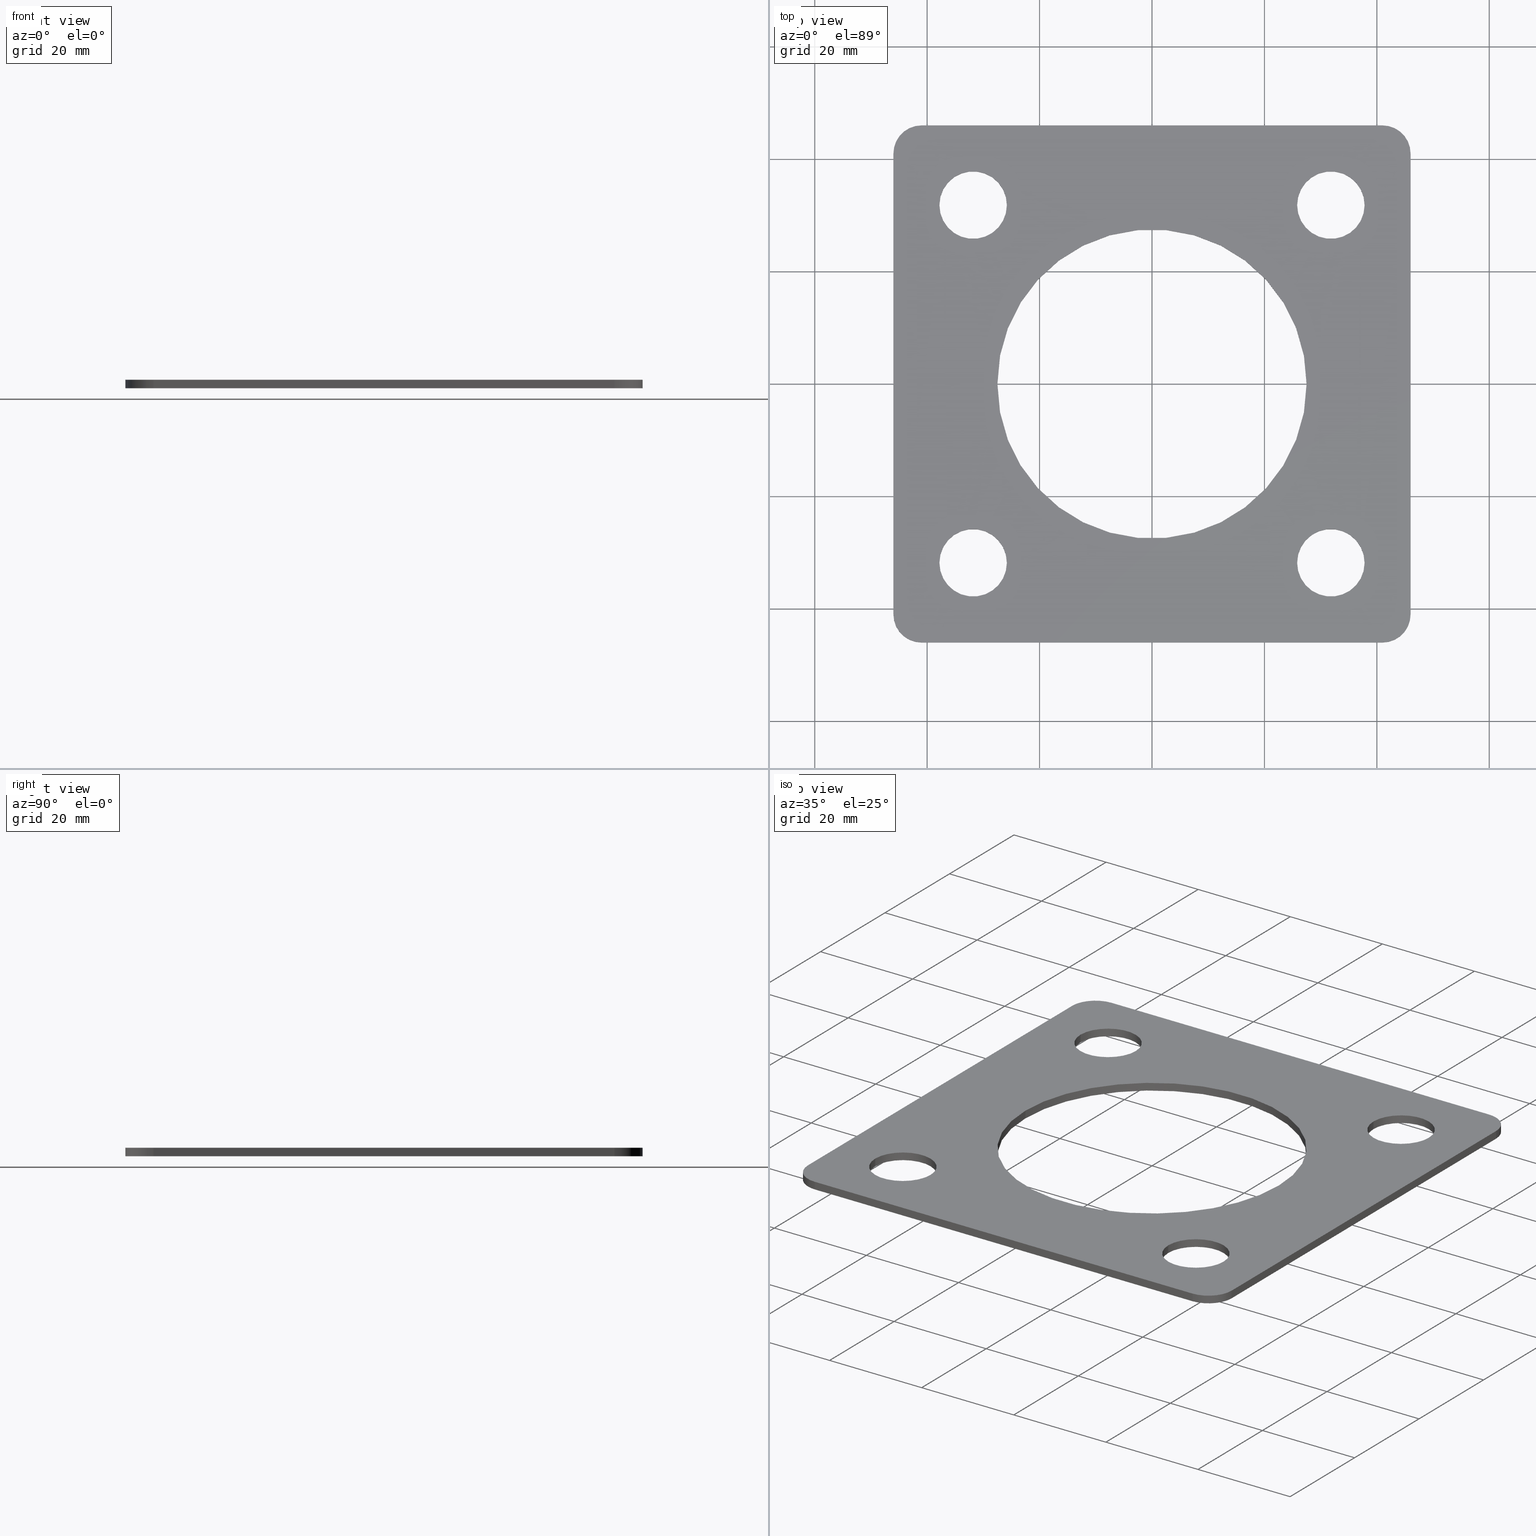
[diagram: canonical four-view strip — front | top / right | iso, engineering-drawing reading convention]
A machine part, canonical four-view strip (front | top / right | iso — engineering-drawing reading convention). The complete STEP part file that produces these views, byte-faithful:
ISO-10303-21;
HEADER;
FILE_DESCRIPTION (( 'STEP AP203' ),
    '1' );
FILE_NAME ('OEM-50-92-SQ_REV_.step',
    '2026-03-04T03:02:05',
    ( '' ),
    ( '' ),
    'SwSTEP 2.0',
    'SolidWorks 2025',
    '' );
FILE_SCHEMA (( 'CONFIG_CONTROL_DESIGN' ));
ENDSEC;

DATA;
#1 = VERTEX_POINT ( 'NONE', #164 ) ;
#2 = CARTESIAN_POINT ( 'NONE',  ( -37.81980515339457583, -31.81980515339470728, 0.000000000000000000 ) ) ;
#3 = CARTESIAN_POINT ( 'NONE',  ( 41.00000000000000711, -41.00000000000000711, -1.500000000000000000 ) ) ;
#4 = EDGE_CURVE ( 'NONE', #260, #405, #677, .T. ) ;
#5 = ORIENTED_EDGE ( 'NONE', *, *, #572, .T. ) ;
#6 = FACE_BOUND ( 'NONE', #483, .T. ) ;
#7 = VECTOR ( 'NONE', #578, 1000.000000000000000 ) ;
#8 = DIRECTION ( 'NONE',  ( 0.000000000000000000, 0.000000000000000000, 1.000000000000000000 ) ) ;
#9 = EDGE_LOOP ( 'NONE', ( #475, #691, #324, #124 ) ) ;
#10 = FACE_BOUND ( 'NONE', #683, .T. ) ;
#11 = CARTESIAN_POINT ( 'NONE',  ( -41.00000000000000000, -46.00000000000000711, 0.000000000000000000 ) ) ;
#12 = CARTESIAN_POINT ( 'NONE',  ( -41.00000000000000711, 45.99999999999999289, 0.000000000000000000 ) ) ;
#13 = EDGE_CURVE ( 'NONE', #420, #506, #266, .T. ) ;
#14 = ADVANCED_BREP_SHAPE_REPRESENTATION ( 'OEM-50-92-SQ_REV_', ( #256, #298 ), #686 ) ;
#15 = DIRECTION ( 'NONE',  ( -0.000000000000000000, 0.000000000000000000, 1.000000000000000000 ) ) ;
#16 = ORIENTED_EDGE ( 'NONE', *, *, #523, .F. ) ;
#17 = DIRECTION ( 'NONE',  ( 1.000000000000000000, 0.000000000000000000, 0.000000000000000000 ) ) ;
#18 = CIRCLE ( 'NONE', #741, 4.999999999999997335 ) ;
#19 = EDGE_CURVE ( 'NONE', #74, #254, #65, .T. ) ;
#20 = VECTOR ( 'NONE', #108, 1000.000000000000000 ) ;
#21 = ORIENTED_EDGE ( 'NONE', *, *, #533, .F. ) ;
#22 = CARTESIAN_POINT ( 'NONE',  ( -46.00000000000000711, 45.99999999999999289, 0.000000000000000000 ) ) ;
#23 = EDGE_CURVE ( 'NONE', #299, #311, #160, .T. ) ;
#24 = VERTEX_POINT ( 'NONE', #339 ) ;
#25 = ORIENTED_EDGE ( 'NONE', *, *, #23, .T. ) ;
#26 = DIRECTION ( 'NONE',  ( 0.000000000000000000, -0.000000000000000000, -1.000000000000000000 ) ) ;
#27 = CARTESIAN_POINT ( 'NONE',  ( -37.81980515339503768, 31.81980515339424187, 0.000000000000000000 ) ) ;
#28 = ORIENTED_EDGE ( 'NONE', *, *, #284, .T. ) ;
#29 = ADVANCED_FACE ( 'NONE', ( #563 ), #387, .F. ) ;
#30 = FACE_BOUND ( 'NONE', #169, .T. ) ;
#31 = CARTESIAN_POINT ( 'NONE',  ( -31.81980515339457583, -31.81980515339470728, -1.500000000000000000 ) ) ;
#32 = AXIS2_PLACEMENT_3D ( 'NONE', #419, #522, #648 ) ;
#33 = ORIENTED_EDGE ( 'NONE', *, *, #680, .F. ) ;
#34 = VECTOR ( 'NONE', #51, 1000.000000000000000 ) ;
#35 = ORIENTED_EDGE ( 'NONE', *, *, #613, .F. ) ;
#36 = PERSON_AND_ORGANIZATION ( #314, #328 ) ;
#37 = EDGE_CURVE ( 'NONE', #254, #74, #696, .T. ) ;
#38 = LINE ( 'NONE', #138, #76 ) ;
#39 = DIRECTION ( 'NONE',  ( 1.000000000000000000, 0.000000000000000000, 0.000000000000000000 ) ) ;
#40 = FACE_OUTER_BOUND ( 'NONE', #465, .T. ) ;
#41 = DIRECTION ( 'NONE',  ( -0.000000000000000000, -0.000000000000000000, 1.000000000000000000 ) ) ;
#42 = CC_DESIGN_PERSON_AND_ORGANIZATION_ASSIGNMENT ( #36, #257, ( #360 ) ) ;
#43 = DIRECTION ( 'NONE',  ( 0.000000000000000000, 0.000000000000000000, 1.000000000000000000 ) ) ;
#44 = AXIS2_PLACEMENT_3D ( 'NONE', #145, #663, #616 ) ;
#45 = EDGE_LOOP ( 'NONE', ( #78, #25, #331, #312 ) ) ;
#46 = EDGE_CURVE ( 'NONE', #385, #189, #162, .T. ) ;
#47 = LINE ( 'NONE', #105, #141 ) ;
#48 = CYLINDRICAL_SURFACE ( 'NONE', #744, 4.999999999999997335 ) ;
#49 = DIRECTION ( 'NONE',  ( -0.000000000000000000, -0.000000000000000000, 1.000000000000000000 ) ) ;
#50 = ORIENTED_EDGE ( 'NONE', *, *, #163, .T. ) ;
#51 = DIRECTION ( 'NONE',  ( 0.000000000000000000, 0.000000000000000000, 1.000000000000000000 ) ) ;
#52 = LINE ( 'NONE', #109, #532 ) ;
#53 = AXIS2_PLACEMENT_3D ( 'NONE', #69, #15, #382 ) ;
#54 = DIRECTION ( 'NONE',  ( -1.000000000000000000, 0.000000000000000000, 0.000000000000000000 ) ) ;
#55 = ORIENTED_EDGE ( 'NONE', *, *, #745, .T. ) ;
#56 = DATE_AND_TIME ( #187, #697 ) ;
#57 = DIRECTION ( 'NONE',  ( 1.000000000000000000, 0.000000000000000000, 0.000000000000000000 ) ) ;
#58 = CARTESIAN_POINT ( 'NONE',  ( 37.81980515339457583, 31.81980515339470728, -1.500000000000000000 ) ) ;
#59 = DIRECTION ( 'NONE',  ( 0.000000000000000000, -0.000000000000000000, 1.000000000000000000 ) ) ;
#60 = APPLICATION_CONTEXT ( 'configuration controlled 3d designs of mechanical parts and assemblies' ) ;
#61 = ORIENTED_EDGE ( 'NONE', *, *, #279, .T. ) ;
#62 = AXIS2_PLACEMENT_3D ( 'NONE', #418, #598, #534 ) ;
#63 = AXIS2_PLACEMENT_3D ( 'NONE', #79, #611, #97 ) ;
#64 = FACE_BOUND ( 'NONE', #566, .T. ) ;
#65 = CIRCLE ( 'NONE', #643, 5.999999999999998224 ) ;
#66 = CIRCLE ( 'NONE', #688, 5.999999999999998224 ) ;
#67 = DIRECTION ( 'NONE',  ( 0.000000000000000000, 0.000000000000000000, 1.000000000000000000 ) ) ;
#68 = EDGE_CURVE ( 'NONE', #129, #443, #733, .T. ) ;
#69 = CARTESIAN_POINT ( 'NONE',  ( 41.00000000000000711, -41.00000000000000711, 0.000000000000000000 ) ) ;
#70 = ORIENTED_EDGE ( 'NONE', *, *, #195, .T. ) ;
#71 = ORIENTED_EDGE ( 'NONE', *, *, #597, .F. ) ;
#72 = EDGE_CURVE ( 'NONE', #409, #323, #574, .T. ) ;
#73 = FACE_OUTER_BOUND ( 'NONE', #660, .T. ) ;
#74 = VERTEX_POINT ( 'NONE', #730 ) ;
#75 = DIRECTION ( 'NONE',  ( 0.000000000000000000, 0.000000000000000000, 1.000000000000000000 ) ) ;
#76 = VECTOR ( 'NONE', #376, 1000.000000000000000 ) ;
#77 = DIRECTION ( 'NONE',  ( -3.469446951953615372E-15, 1.000000000000000000, 0.000000000000000000 ) ) ;
#78 = ORIENTED_EDGE ( 'NONE', *, *, #158, .F. ) ;
#79 = CARTESIAN_POINT ( 'NONE',  ( -31.81980515339457583, -31.81980515339470728, -1.500000000000000000 ) ) ;
#80 = CARTESIAN_POINT ( 'NONE',  ( 37.81980515339481741, -31.81980515339446214, 0.000000000000000000 ) ) ;
#81 = ADVANCED_FACE ( 'NONE', ( #213 ), #48, .T. ) ;
#82 = VERTEX_POINT ( 'NONE', #329 ) ;
#83 = APPROVAL_ROLE ( '' ) ;
#84 = CARTESIAN_POINT ( 'NONE',  ( 25.81980515339481741, -31.81980515339446214, -1.500000000000000000 ) ) ;
#85 = CARTESIAN_POINT ( 'NONE',  ( -31.81980515339503768, 31.81980515339424187, -1.500000000000000000 ) ) ;
#86 = ORIENTED_EDGE ( 'NONE', *, *, #654, .F. ) ;
#87 = ORIENTED_EDGE ( 'NONE', *, *, #151, .F. ) ;
#88 = EDGE_LOOP ( 'NONE', ( #194, #98, #596, #369 ) ) ;
#89 = PERSON_AND_ORGANIZATION ( #314, #328 ) ;
#90 = LINE ( 'NONE', #371, #519 ) ;
#91 = AXIS2_PLACEMENT_3D ( 'NONE', #85, #447, #480 ) ;
#92 = CARTESIAN_POINT ( 'NONE',  ( 0.000000000000000000, -4.685600699824163028E-15, -1.500000000000000000 ) ) ;
#93 = LOCAL_TIME ( 14, 2, 5.000000000000000000, #130 ) ;
#94 = ADVANCED_FACE ( 'NONE', ( #740 ), #394, .F. ) ;
#95 = CYLINDRICAL_SURFACE ( 'NONE', #390, 5.999999999999998224 ) ;
#96 = ORIENTED_EDGE ( 'NONE', *, *, #272, .F. ) ;
#97 = DIRECTION ( 'NONE',  ( 1.000000000000000000, 0.000000000000000000, 0.000000000000000000 ) ) ;
#98 = ORIENTED_EDGE ( 'NONE', *, *, #218, .F. ) ;
#99 = DIRECTION ( 'NONE',  ( 1.000000000000000000, 0.000000000000000000, 0.000000000000000000 ) ) ;
#100 = ADVANCED_FACE ( 'NONE', ( #276 ), #155, .T. ) ;
#101 = DIRECTION ( 'NONE',  ( -3.469446951953615372E-15, 1.000000000000000000, 0.000000000000000000 ) ) ;
#102 = ADVANCED_FACE ( 'NONE', ( #270 ), #240, .F. ) ;
#103 = VECTOR ( 'NONE', #59, 1000.000000000000000 ) ;
#104 = EDGE_LOOP ( 'NONE', ( #498, #71 ) ) ;
#105 = CARTESIAN_POINT ( 'NONE',  ( 45.99999999999999289, 40.99999999999999289, -1.500000000000000000 ) ) ;
#106 = CARTESIAN_POINT ( 'NONE',  ( -31.81980515339457583, -31.81980515339470728, 0.000000000000000000 ) ) ;
#107 = ORIENTED_EDGE ( 'NONE', *, *, #68, .T. ) ;
#108 = DIRECTION ( 'NONE',  ( -0.000000000000000000, -0.000000000000000000, -1.000000000000000000 ) ) ;
#109 = CARTESIAN_POINT ( 'NONE',  ( -25.81980515339457583, -31.81980515339470728, -1.500000000000000000 ) ) ;
#110 = EDGE_LOOP ( 'NONE', ( #497, #61, #207, #595, #664, #5, #661, #429 ) ) ;
#111 =( NAMED_UNIT ( * ) SI_UNIT ( $, .STERADIAN. ) SOLID_ANGLE_UNIT ( ) );
#112 = DIRECTION ( 'NONE',  ( 0.000000000000000000, -0.000000000000000000, 1.000000000000000000 ) ) ;
#113 = AXIS2_PLACEMENT_3D ( 'NONE', #265, #372, #77 ) ;
#114 = VERTEX_POINT ( 'NONE', #525 ) ;
#115 = ORIENTED_EDGE ( 'NONE', *, *, #690, .F. ) ;
#116 = APPROVAL_DATE_TIME ( #536, #736 ) ;
#117 = EDGE_CURVE ( 'NONE', #361, #311, #440, .T. ) ;
#118 = CYLINDRICAL_SURFACE ( 'NONE', #205, 5.999999999999998224 ) ;
#119 = ORIENTED_EDGE ( 'NONE', *, *, #699, .F. ) ;
#120 = CYLINDRICAL_SURFACE ( 'NONE', #668, 5.999999999999998224 ) ;
#121 = DIRECTION ( 'NONE',  ( 0.000000000000000000, 0.000000000000000000, 1.000000000000000000 ) ) ;
#122 = CARTESIAN_POINT ( 'NONE',  ( 31.81980515339457583, 31.81980515339470728, -1.500000000000000000 ) ) ;
#123 = EDGE_CURVE ( 'NONE', #602, #368, #583, .T. ) ;
#124 = ORIENTED_EDGE ( 'NONE', *, *, #495, .T. ) ;
#125 = CIRCLE ( 'NONE', #165, 5.999999999999998224 ) ;
#126 = APPROVAL_STATUS ( 'not_yet_approved' ) ;
#127 = AXIS2_PLACEMENT_3D ( 'NONE', #228, #466, #219 ) ;
#128 = DIRECTION ( 'NONE',  ( 0.000000000000000000, 1.000000000000000000, 0.000000000000000000 ) ) ;
#129 = VERTEX_POINT ( 'NONE', #345 ) ;
#130 = COORDINATED_UNIVERSAL_TIME_OFFSET ( 10, 0, .AHEAD. ) ;
#131 = CARTESIAN_POINT ( 'NONE',  ( 45.99999999999999289, 40.99999999999999289, 0.000000000000000000 ) ) ;
#132 = DIRECTION ( 'NONE',  ( -1.000000000000000000, -0.000000000000000000, -0.000000000000000000 ) ) ;
#133 = ORIENTED_EDGE ( 'NONE', *, *, #123, .T. ) ;
#134 = ADVANCED_FACE ( 'NONE', ( #746 ), #120, .F. ) ;
#135 = CARTESIAN_POINT ( 'NONE',  ( -46.00000000000000711, 40.99999999999999289, -1.500000000000000000 ) ) ;
#136 = ORIENTED_EDGE ( 'NONE', *, *, #625, .T. ) ;
#137 = PERSON_AND_ORGANIZATION ( #314, #328 ) ;
#138 = CARTESIAN_POINT ( 'NONE',  ( 46.00000000000001421, -41.00000000000000000, -1.500000000000000000 ) ) ;
#139 = VECTOR ( 'NONE', #473, 1000.000000000000000 ) ;
#140 = FACE_OUTER_BOUND ( 'NONE', #417, .T. ) ;
#141 = VECTOR ( 'NONE', #274, 1000.000000000000000 ) ;
#142 = ORIENTED_EDGE ( 'NONE', *, *, #717, .T. ) ;
#143 = EDGE_LOOP ( 'NONE', ( #612, #190, #448, #267 ) ) ;
#144 = SECURITY_CLASSIFICATION_LEVEL ( 'unclassified' ) ;
#145 = CARTESIAN_POINT ( 'NONE',  ( 0.000000000000000000, 0.000000000000000000, 0.000000000000000000 ) ) ;
#146 = ADVANCED_FACE ( 'NONE', ( #470 ), #118, .F. ) ;
#147 = ORIENTED_EDGE ( 'NONE', *, *, #392, .F. ) ;
#148 = FACE_BOUND ( 'NONE', #211, .T. ) ;
#149 = EDGE_CURVE ( 'NONE', #552, #129, #52, .T. ) ;
#150 = VERTEX_POINT ( 'NONE', #11 ) ;
#151 = EDGE_CURVE ( 'NONE', #665, #323, #403, .T. ) ;
#152 = DATE_AND_TIME ( #544, #217 ) ;
#153 = CARTESIAN_POINT ( 'NONE',  ( -31.81980515339503768, 31.81980515339424187, 0.000000000000000000 ) ) ;
#154 = CIRCLE ( 'NONE', #91, 5.999999999999998224 ) ;
#155 = CYLINDRICAL_SURFACE ( 'NONE', #363, 4.999999999999997335 ) ;
#156 = APPROVAL_PERSON_ORGANIZATION ( #137, #662, #83 ) ;
#157 = CARTESIAN_POINT ( 'NONE',  ( 31.81980515339457583, 31.81980515339470728, -1.500000000000000000 ) ) ;
#158 = EDGE_CURVE ( 'NONE', #299, #416, #66, .T. ) ;
#159 = LINE ( 'NONE', #568, #541 ) ;
#160 = LINE ( 'NONE', #728, #310 ) ;
#161 = DIRECTION ( 'NONE',  ( 0.000000000000000000, 0.000000000000000000, 1.000000000000000000 ) ) ;
#162 = LINE ( 'NONE', #396, #604 ) ;
#163 = EDGE_CURVE ( 'NONE', #454, #379, #243, .T. ) ;
#164 = CARTESIAN_POINT ( 'NONE',  ( -27.50000000000000000, -1.317822002168941918E-15, 0.000000000000000000 ) ) ;
#165 = AXIS2_PLACEMENT_3D ( 'NONE', #305, #537, #477 ) ;
#166 = LOCAL_TIME ( 14, 2, 5.000000000000000000, #671 ) ;
#167 = EDGE_CURVE ( 'NONE', #527, #114, #520, .T. ) ;
#168 = DIRECTION ( 'NONE',  ( 1.000000000000000000, 0.000000000000000000, 0.000000000000000000 ) ) ;
#169 = EDGE_LOOP ( 'NONE', ( #479, #724 ) ) ;
#170 = DIRECTION ( 'NONE',  ( -0.000000000000000000, -0.000000000000000000, 1.000000000000000000 ) ) ;
#171 = DIRECTION ( 'NONE',  ( 0.000000000000000000, -0.000000000000000000, -1.000000000000000000 ) ) ;
#172 = ORIENTED_EDGE ( 'NONE', *, *, #68, .F. ) ;
#173 = CARTESIAN_POINT ( 'NONE',  ( -41.00000000000000711, 40.99999999999999289, -1.500000000000000000 ) ) ;
#174 = CIRCLE ( 'NONE', #666, 4.999999999999997335 ) ;
#175 = CC_DESIGN_DATE_AND_TIME_ASSIGNMENT ( #56, #291, ( #359 ) ) ;
#176 = EDGE_LOOP ( 'NONE', ( #444, #571, #713, #722 ) ) ;
#177 = DIRECTION ( 'NONE',  ( 1.000000000000000000, 0.000000000000000000, 0.000000000000000000 ) ) ;
#178 = LINE ( 'NONE', #229, #103 ) ;
#179 = ORIENTED_EDGE ( 'NONE', *, *, #441, .T. ) ;
#180 = EDGE_CURVE ( 'NONE', #150, #82, #698, .T. ) ;
#181 = FACE_OUTER_BOUND ( 'NONE', #45, .T. ) ;
#182 = EDGE_CURVE ( 'NONE', #420, #260, #178, .T. ) ;
#183 = FACE_OUTER_BOUND ( 'NONE', #249, .T. ) ;
#184 = ORIENTED_EDGE ( 'NONE', *, *, #195, .F. ) ;
#185 = LINE ( 'NONE', #58, #388 ) ;
#186 = CIRCLE ( 'NONE', #412, 4.999999999999997335 ) ;
#187 = CALENDAR_DATE ( 2026, 4, 3 ) ;
#188 = DIRECTION ( 'NONE',  ( 1.000000000000000000, 0.000000000000000000, 0.000000000000000000 ) ) ;
#189 = VERTEX_POINT ( 'NONE', #700 ) ;
#190 = ORIENTED_EDGE ( 'NONE', *, *, #366, .F. ) ;
#191 = CARTESIAN_POINT ( 'NONE',  ( -46.00000000000000711, 45.99999999999999289, -1.500000000000000000 ) ) ;
#192 = CYLINDRICAL_SURFACE ( 'NONE', #487, 5.999999999999998224 ) ;
#193 = ORIENTED_EDGE ( 'NONE', *, *, #658, .T. ) ;
#194 = ORIENTED_EDGE ( 'NONE', *, *, #745, .F. ) ;
#195 = EDGE_CURVE ( 'NONE', #506, #420, #499, .T. ) ;
#196 = PERSON_AND_ORGANIZATION ( #314, #328 ) ;
#197 = PLANE ( 'NONE',  #424 ) ;
#198 = ORIENTED_EDGE ( 'NONE', *, *, #272, .T. ) ;
#199 = ORIENTED_EDGE ( 'NONE', *, *, #167, .F. ) ;
#200 = APPROVAL_DATE_TIME ( #325, #233 ) ;
#201 = CIRCLE ( 'NONE', #53, 4.999999999999997335 ) ;
#202 = FACE_OUTER_BOUND ( 'NONE', #206, .T. ) ;
#203 = VECTOR ( 'NONE', #636, 1000.000000000000000 ) ;
#204 = LINE ( 'NONE', #554, #618 ) ;
#205 = AXIS2_PLACEMENT_3D ( 'NONE', #575, #468, #168 ) ;
#206 = EDGE_LOOP ( 'NONE', ( #35, #246, #231, #704, #488, #434, #584, #469 ) ) ;
#207 = ORIENTED_EDGE ( 'NONE', *, *, #356, .T. ) ;
#208 = APPROVAL_ROLE ( '' ) ;
#209 = PLANE ( 'NONE',  #337 ) ;
#210 = ADVANCED_FACE ( 'NONE', ( #183 ), #644, .T. ) ;
#211 = EDGE_LOOP ( 'NONE', ( #720, #70 ) ) ;
#212 = DIRECTION ( 'NONE',  ( 0.000000000000000000, -0.000000000000000000, 1.000000000000000000 ) ) ;
#213 = FACE_OUTER_BOUND ( 'NONE', #505, .T. ) ;
#214 = DIRECTION ( 'NONE',  ( -0.000000000000000000, 0.000000000000000000, 1.000000000000000000 ) ) ;
#215 = AXIS2_PLACEMENT_3D ( 'NONE', #157, #49, #679 ) ;
#216 = CARTESIAN_POINT ( 'NONE',  ( -41.00000000000000000, -41.00000000000000000, -1.500000000000000000 ) ) ;
#217 = LOCAL_TIME ( 14, 2, 5.000000000000000000, #610 ) ;
#218 = EDGE_CURVE ( 'NONE', #220, #551, #576, .T. ) ;
#219 = DIRECTION ( 'NONE',  ( 1.000000000000000000, 0.000000000000000000, 0.000000000000000000 ) ) ;
#220 = VERTEX_POINT ( 'NONE', #692 ) ;
#221 = EDGE_CURVE ( 'NONE', #512, #24, #302, .T. ) ;
#222 = DIRECTION ( 'NONE',  ( 1.000000000000000000, 0.000000000000000000, 0.000000000000000000 ) ) ;
#223 = DIRECTION ( 'NONE',  ( 0.000000000000000000, 0.000000000000000000, 1.000000000000000000 ) ) ;
#224 = FACE_OUTER_BOUND ( 'NONE', #709, .T. ) ;
#225 = DIRECTION ( 'NONE',  ( 0.000000000000000000, 0.000000000000000000, 1.000000000000000000 ) ) ;
#226 = AXIS2_PLACEMENT_3D ( 'NONE', #296, #8, #404 ) ;
#227 = ORIENTED_EDGE ( 'NONE', *, *, #180, .F. ) ;
#228 = CARTESIAN_POINT ( 'NONE',  ( 40.99999999999999289, 40.99999999999999289, -1.500000000000000000 ) ) ;
#229 = CARTESIAN_POINT ( 'NONE',  ( 37.81980515339481741, -31.81980515339446214, -1.500000000000000000 ) ) ;
#230 = EDGE_CURVE ( 'NONE', #602, #454, #400, .T. ) ;
#231 = ORIENTED_EDGE ( 'NONE', *, *, #72, .F. ) ;
#232 = DIRECTION ( 'NONE',  ( 1.040834085586084572E-14, -1.000000000000000000, 0.000000000000000000 ) ) ;
#233 = APPROVAL ( #380, 'UNSPECIFIED' ) ;
#234 = CARTESIAN_POINT ( 'NONE',  ( -25.81980515339504123, 31.81980515339424187, -1.500000000000000000 ) ) ;
#235 = DIRECTION ( 'NONE',  ( 0.000000000000000000, 0.000000000000000000, 1.000000000000000000 ) ) ;
#236 = VECTOR ( 'NONE', #415, 1000.000000000000000 ) ;
#237 = CC_DESIGN_APPROVAL ( #233, ( #360 ) ) ;
#238 = ORIENTED_EDGE ( 'NONE', *, *, #441, .F. ) ;
#239 = CARTESIAN_POINT ( 'NONE',  ( -46.00000000000000711, 45.99999999999999289, -1.500000000000000000 ) ) ;
#240 = CYLINDRICAL_SURFACE ( 'NONE', #633, 5.999999999999998224 ) ;
#241 = CC_DESIGN_DATE_AND_TIME_ASSIGNMENT ( #152, #313, ( #667 ) ) ;
#242 = CARTESIAN_POINT ( 'NONE',  ( -31.81980515339503768, 31.81980515339424187, -1.500000000000000000 ) ) ;
#243 = LINE ( 'NONE', #358, #236 ) ;
#244 = ORIENTED_EDGE ( 'NONE', *, *, #467, .T. ) ;
#245 = CARTESIAN_POINT ( 'NONE',  ( 40.99999999999998579, 45.99999999999999289, 0.000000000000000000 ) ) ;
#246 = ORIENTED_EDGE ( 'NONE', *, *, #151, .T. ) ;
#247 = AXIS2_PLACEMENT_3D ( 'NONE', #647, #472, #17 ) ;
#248 = FACE_OUTER_BOUND ( 'NONE', #476, .T. ) ;
#249 = EDGE_LOOP ( 'NONE', ( #555, #136, #743, #517 ) ) ;
#250 = ORIENTED_EDGE ( 'NONE', *, *, #658, .F. ) ;
#251 = DATE_AND_TIME ( #268, #166 ) ;
#252 = DIRECTION ( 'NONE',  ( 0.000000000000000000, 0.000000000000000000, 1.000000000000000000 ) ) ;
#253 = LINE ( 'NONE', #442, #652 ) ;
#254 = VERTEX_POINT ( 'NONE', #411 ) ;
#255 = CC_DESIGN_PERSON_AND_ORGANIZATION_ASSIGNMENT ( #399, #421, ( #410 ) ) ;
#256 = MANIFOLD_SOLID_BREP ( 'CirPattern1', #577 ) ;
#257 = PERSON_AND_ORGANIZATION_ROLE ( 'creator' ) ;
#258 = CARTESIAN_POINT ( 'NONE',  ( 41.00000000000000711, -41.00000000000000711, -1.500000000000000000 ) ) ;
#259 = DIRECTION ( 'NONE',  ( 0.000000000000000000, 0.000000000000000000, 1.000000000000000000 ) ) ;
#260 = VERTEX_POINT ( 'NONE', #80 ) ;
#261 = PERSON_AND_ORGANIZATION_ROLE ( 'design_supplier' ) ;
#262 = AXIS2_PLACEMENT_3D ( 'NONE', #489, #121, #659 ) ;
#263 = CARTESIAN_POINT ( 'NONE',  ( 27.50000000000000000, -4.685600699824163028E-15, -1.500000000000000000 ) ) ;
#264 = AXIS2_PLACEMENT_3D ( 'NONE', #393, #288, #681 ) ;
#265 = CARTESIAN_POINT ( 'NONE',  ( 31.81980515339481741, -31.81980515339446214, 0.000000000000000000 ) ) ;
#266 = CIRCLE ( 'NONE', #375, 5.999999999999998224 ) ;
#267 = ORIENTED_EDGE ( 'NONE', *, *, #117, .T. ) ;
#268 = CALENDAR_DATE ( 2026, 4, 3 ) ;
#269 = DIRECTION ( 'NONE',  ( 1.000000000000000000, 0.000000000000000000, 0.000000000000000000 ) ) ;
#270 = FACE_OUTER_BOUND ( 'NONE', #540, .T. ) ;
#271 = DIRECTION ( 'NONE',  ( 0.000000000000000000, -1.000000000000000000, 0.000000000000000000 ) ) ;
#272 = EDGE_CURVE ( 'NONE', #405, #260, #603, .T. ) ;
#273 = DIRECTION ( 'NONE',  ( -1.000000000000000000, 0.000000000000000000, 0.000000000000000000 ) ) ;
#274 = DIRECTION ( 'NONE',  ( 0.000000000000000000, 0.000000000000000000, 1.000000000000000000 ) ) ;
#275 = AXIS2_PLACEMENT_3D ( 'NONE', #242, #655, #177 ) ;
#276 = FACE_OUTER_BOUND ( 'NONE', #176, .T. ) ;
#277 = CIRCLE ( 'NONE', #264, 4.999999999999997335 ) ;
#278 = CYLINDRICAL_SURFACE ( 'NONE', #215, 5.999999999999998224 ) ;
#279 = EDGE_CURVE ( 'NONE', #82, #701, #201, .T. ) ;
#280 = ORIENTED_EDGE ( 'NONE', *, *, #717, .F. ) ;
#281 = CARTESIAN_POINT ( 'NONE',  ( -37.81980515339457583, -31.81980515339470728, -1.500000000000000000 ) ) ;
#282 = DIRECTION ( 'NONE',  ( 0.000000000000000000, 0.000000000000000000, 1.000000000000000000 ) ) ;
#283 = LINE ( 'NONE', #631, #34 ) ;
#284 = EDGE_CURVE ( 'NONE', #556, #1, #316, .T. ) ;
#285 = DIRECTION ( 'NONE',  ( 0.000000000000000000, 0.000000000000000000, 1.000000000000000000 ) ) ;
#286 = AXIS2_PLACEMENT_3D ( 'NONE', #191, #128, #364 ) ;
#287 = ORIENTED_EDGE ( 'NONE', *, *, #221, .F. ) ;
#288 = DIRECTION ( 'NONE',  ( 0.000000000000000000, -0.000000000000000000, -1.000000000000000000 ) ) ;
#289 = DIRECTION ( 'NONE',  ( 1.000000000000000000, 0.000000000000000000, 0.000000000000000000 ) ) ;
#290 = VERTEX_POINT ( 'NONE', #426 ) ;
#291 = DATE_TIME_ROLE ( 'creation_date' ) ;
#292 = DIRECTION ( 'NONE',  ( 0.000000000000000000, 0.000000000000000000, 1.000000000000000000 ) ) ;
#293 = EDGE_CURVE ( 'NONE', #189, #454, #204, .T. ) ;
#294 = CARTESIAN_POINT ( 'NONE',  ( 31.81980515339481741, -31.81980515339446214, -1.500000000000000000 ) ) ;
#295 = DIRECTION ( 'NONE',  ( -0.000000000000000000, -0.000000000000000000, 1.000000000000000000 ) ) ;
#296 = CARTESIAN_POINT ( 'NONE',  ( 31.81980515339481741, -31.81980515339446214, -1.500000000000000000 ) ) ;
#297 = AXIS2_PLACEMENT_3D ( 'NONE', #239, #651, #301 ) ;
#298 = AXIS2_PLACEMENT_3D ( 'NONE', #564, #346, #222 ) ;
#299 = VERTEX_POINT ( 'NONE', #711 ) ;
#300 = AXIS2_PLACEMENT_3D ( 'NONE', #3, #171, #57 ) ;
#301 = DIRECTION ( 'NONE',  ( 7.542275982507855914E-17, -1.000000000000000000, 0.000000000000000000 ) ) ;
#302 = LINE ( 'NONE', #482, #203 ) ;
#303 = CC_DESIGN_PERSON_AND_ORGANIZATION_ASSIGNMENT ( #89, #261, ( #360 ) ) ;
#304 = ORIENTED_EDGE ( 'NONE', *, *, #149, .T. ) ;
#305 = CARTESIAN_POINT ( 'NONE',  ( -31.81980515339457583, -31.81980515339470728, -1.500000000000000000 ) ) ;
#306 = ADVANCED_FACE ( 'NONE', ( #140 ), #192, .F. ) ;
#307 = ORIENTED_EDGE ( 'NONE', *, *, #46, .T. ) ;
#308 = CIRCLE ( 'NONE', #731, 5.999999999999998224 ) ;
#309 = CARTESIAN_POINT ( 'NONE',  ( -41.00000000000000711, 40.99999999999999289, 0.000000000000000000 ) ) ;
#310 = VECTOR ( 'NONE', #41, 1000.000000000000000 ) ;
#311 = VERTEX_POINT ( 'NONE', #27 ) ;
#312 = ORIENTED_EDGE ( 'NONE', *, *, #727, .F. ) ;
#313 = DATE_TIME_ROLE ( 'classification_date' ) ;
#314 = PERSON ( 'UNSPECIFIED', 'UNSPECIFIED', 'UNSPECIFIED', ('UNSPECIFIED'), ('UNSPECIFIED'), ('UNSPECIFIED') ) ;
#315 = DIRECTION ( 'NONE',  ( 0.000000000000000000, 0.000000000000000000, 1.000000000000000000 ) ) ;
#316 = LINE ( 'NONE', #322, #676 ) ;
#317 = ORIENTED_EDGE ( 'NONE', *, *, #158, .T. ) ;
#318 = EDGE_CURVE ( 'NONE', #527, #602, #253, .T. ) ;
#319 = ORIENTED_EDGE ( 'NONE', *, *, #481, .F. ) ;
#320 = APPROVAL_DATE_TIME ( #251, #662 ) ;
#321 = CARTESIAN_POINT ( 'NONE',  ( -25.81980515339457583, -31.81980515339470728, -1.500000000000000000 ) ) ;
#322 = CARTESIAN_POINT ( 'NONE',  ( -27.50000000000000000, -1.317822002168941918E-15, -1.500000000000000000 ) ) ;
#323 = VERTEX_POINT ( 'NONE', #433 ) ;
#324 = ORIENTED_EDGE ( 'NONE', *, *, #221, .T. ) ;
#325 = DATE_AND_TIME ( #445, #742 ) ;
#326 = VECTOR ( 'NONE', #706, 1000.000000000000000 ) ;
#327 = CARTESIAN_POINT ( 'NONE',  ( -31.81980515339457583, -31.81980515339470728, -1.500000000000000000 ) ) ;
#328 = ORGANIZATION ( 'UNSPECIFIED', 'UNSPECIFIED', '' ) ;
#329 = CARTESIAN_POINT ( 'NONE',  ( 41.00000000000000711, -46.00000000000000711, 0.000000000000000000 ) ) ;
#330 = DIRECTION ( 'NONE',  ( 1.000000000000000000, 0.000000000000000000, 0.000000000000000000 ) ) ;
#331 = ORIENTED_EDGE ( 'NONE', *, *, #597, .T. ) ;
#332 = APPLICATION_CONTEXT ( 'configuration controlled 3d designs of mechanical parts and assemblies' ) ;
#333 = APPLICATION_PROTOCOL_DEFINITION ( 'international standard', 'config_control_design', 1994, #60 ) ;
#334 = EDGE_CURVE ( 'NONE', #512, #556, #452, .T. ) ;
#335 = ORIENTED_EDGE ( 'NONE', *, *, #72, .T. ) ;
#336 =( LENGTH_UNIT ( ) NAMED_UNIT ( * ) SI_UNIT ( .MILLI., .METRE. ) );
#337 = AXIS2_PLACEMENT_3D ( 'NONE', #507, #271, #674 ) ;
#338 = PRODUCT_RELATED_PRODUCT_CATEGORY ( 'detail', '', ( #410 ) ) ;
#339 = CARTESIAN_POINT ( 'NONE',  ( 27.50000000000000000, -4.685600699824163028E-15, 0.000000000000000000 ) ) ;
#340 = CC_DESIGN_SECURITY_CLASSIFICATION ( #667, ( #360 ) ) ;
#341 = CARTESIAN_POINT ( 'NONE',  ( 46.00000000000001421, -41.00000000000000000, 0.000000000000000000 ) ) ;
#342 = ORIENTED_EDGE ( 'NONE', *, *, #37, .F. ) ;
#343 = ADVANCED_FACE ( 'NONE', ( #455 ), #278, .F. ) ;
#344 = ORIENTED_EDGE ( 'NONE', *, *, #334, .T. ) ;
#345 = CARTESIAN_POINT ( 'NONE',  ( -25.81980515339457583, -31.81980515339470728, 0.000000000000000000 ) ) ;
#346 = DIRECTION ( 'NONE',  ( 0.000000000000000000, 0.000000000000000000, 1.000000000000000000 ) ) ;
#347 = DIRECTION ( 'NONE',  ( 0.000000000000000000, -0.000000000000000000, 1.000000000000000000 ) ) ;
#348 = AXIS2_PLACEMENT_3D ( 'NONE', #389, #26, #269 ) ;
#349 = VECTOR ( 'NONE', #606, 1000.000000000000000 ) ;
#350 = ORIENTED_EDGE ( 'NONE', *, *, #366, .T. ) ;
#351 = DIRECTION ( 'NONE',  ( -0.000000000000000000, 0.000000000000000000, 1.000000000000000000 ) ) ;
#352 = CARTESIAN_POINT ( 'NONE',  ( -31.81980515339503768, 31.81980515339424187, 0.000000000000000000 ) ) ;
#353 = ORIENTED_EDGE ( 'NONE', *, *, #495, .F. ) ;
#354 = CARTESIAN_POINT ( 'NONE',  ( 25.81980515339481741, -31.81980515339446214, -1.500000000000000000 ) ) ;
#355 = CARTESIAN_POINT ( 'NONE',  ( -31.81980515339503768, 31.81980515339424187, -1.500000000000000000 ) ) ;
#356 = EDGE_CURVE ( 'NONE', #701, #383, #624, .T. ) ;
#357 = FACE_BOUND ( 'NONE', #104, .T. ) ;
#358 = CARTESIAN_POINT ( 'NONE',  ( -41.00000000000000711, 45.99999999999999289, -1.500000000000000000 ) ) ;
#359 = PRODUCT_DEFINITION ( 'UNKNOWN', '', #360, #561 ) ;
#360 = PRODUCT_DEFINITION_FORMATION_WITH_SPECIFIED_SOURCE ( 'ANY', '', #410, .NOT_KNOWN. ) ;
#361 = VERTEX_POINT ( 'NONE', #627 ) ;
#362 = APPROVAL_ROLE ( '' ) ;
#363 = AXIS2_PLACEMENT_3D ( 'NONE', #560, #621, #39 ) ;
#364 = DIRECTION ( 'NONE',  ( 0.000000000000000000, -0.000000000000000000, 1.000000000000000000 ) ) ;
#365 = EDGE_LOOP ( 'NONE', ( #342, #641 ) ) ;
#366 = EDGE_CURVE ( 'NONE', #416, #299, #154, .T. ) ;
#367 = CARTESIAN_POINT ( 'NONE',  ( -37.81980515339457583, -31.81980515339470728, -1.500000000000000000 ) ) ;
#368 = VERTEX_POINT ( 'NONE', #703 ) ;
#369 = ORIENTED_EDGE ( 'NONE', *, *, #37, .T. ) ;
#370 = COORDINATED_UNIVERSAL_TIME_OFFSET ( 10, 0, .AHEAD. ) ;
#371 = CARTESIAN_POINT ( 'NONE',  ( 45.99999999999999289, 45.99999999999999289, -1.500000000000000000 ) ) ;
#372 = DIRECTION ( 'NONE',  ( 0.000000000000000000, 0.000000000000000000, 1.000000000000000000 ) ) ;
#373 = ORIENTED_EDGE ( 'NONE', *, *, #19, .T. ) ;
#374 = AXIS2_PLACEMENT_3D ( 'NONE', #582, #292, #524 ) ;
#375 = AXIS2_PLACEMENT_3D ( 'NONE', #689, #617, #101 ) ;
#376 = DIRECTION ( 'NONE',  ( -0.000000000000000000, -0.000000000000000000, -1.000000000000000000 ) ) ;
#377 = CARTESIAN_POINT ( 'NONE',  ( 0.000000000000000000, -4.685600699824163028E-15, -1.500000000000000000 ) ) ;
#378 = EDGE_LOOP ( 'NONE', ( #486, #193 ) ) ;
#379 = VERTEX_POINT ( 'NONE', #12 ) ;
#380 = APPROVAL_STATUS ( 'not_yet_approved' ) ;
#381 = DIRECTION ( 'NONE',  ( -0.000000000000000000, -0.000000000000000000, 1.000000000000000000 ) ) ;
#382 = DIRECTION ( 'NONE',  ( 1.000000000000000000, 0.000000000000000000, 0.000000000000000000 ) ) ;
#383 = VERTEX_POINT ( 'NONE', #131 ) ;
#384 = ORIENTED_EDGE ( 'NONE', *, *, #431, .F. ) ;
#385 = VERTEX_POINT ( 'NONE', #245 ) ;
#386 = CARTESIAN_POINT ( 'NONE',  ( 0.000000000000000000, 0.000000000000000000, -1.500000000000000000 ) ) ;
#387 = CYLINDRICAL_SURFACE ( 'NONE', #463, 27.50000000000000000 ) ;
#388 = VECTOR ( 'NONE', #295, 1000.000000000000000 ) ;
#389 = CARTESIAN_POINT ( 'NONE',  ( -41.00000000000000000, -41.00000000000000000, -1.500000000000000000 ) ) ;
#390 = AXIS2_PLACEMENT_3D ( 'NONE', #327, #381, #330 ) ;
#391 = ORIENTED_EDGE ( 'NONE', *, *, #4, .T. ) ;
#392 = EDGE_CURVE ( 'NONE', #220, #254, #185, .T. ) ;
#393 = CARTESIAN_POINT ( 'NONE',  ( 40.99999999999999289, 40.99999999999999289, -1.500000000000000000 ) ) ;
#394 = CYLINDRICAL_SURFACE ( 'NONE', #504, 27.50000000000000000 ) ;
#395 = CARTESIAN_POINT ( 'NONE',  ( 46.00000000000001421, -41.00000000000000000, -1.500000000000000000 ) ) ;
#396 = CARTESIAN_POINT ( 'NONE',  ( 40.99999999999998579, 45.99999999999999289, -1.500000000000000000 ) ) ;
#397 = DIRECTION ( 'NONE',  ( -2.262682794752357144E-16, 1.000000000000000000, -0.000000000000000000 ) ) ;
#398 = ORIENTED_EDGE ( 'NONE', *, *, #13, .F. ) ;
#399 = PERSON_AND_ORGANIZATION ( #314, #328 ) ;
#400 = CIRCLE ( 'NONE', #529, 4.999999999999997335 ) ;
#401 = CC_DESIGN_APPROVAL ( #662, ( #667 ) ) ;
#402 = DIRECTION ( 'NONE',  ( 1.000000000000000000, 0.000000000000000000, 0.000000000000000000 ) ) ;
#403 = CIRCLE ( 'NONE', #300, 4.999999999999997335 ) ;
#404 = DIRECTION ( 'NONE',  ( -3.469446951953615372E-15, 1.000000000000000000, 0.000000000000000000 ) ) ;
#405 = VERTEX_POINT ( 'NONE', #425 ) ;
#406 = LINE ( 'NONE', #573, #632 ) ;
#407 = DIRECTION ( 'NONE',  ( 0.000000000000000000, -0.000000000000000000, -1.000000000000000000 ) ) ;
#408 = ADVANCED_FACE ( 'NONE', ( #73 ), #588, .T. ) ;
#409 = VERTEX_POINT ( 'NONE', #710 ) ;
#410 = PRODUCT ( 'OEM-50-92-SQ_REV_', 'OEM-50-92-SQ_REV_', '', ( #513 ) ) ;
#411 = CARTESIAN_POINT ( 'NONE',  ( 37.81980515339457583, 31.81980515339470728, 0.000000000000000000 ) ) ;
#412 = AXIS2_PLACEMENT_3D ( 'NONE', #491, #214, #496 ) ;
#413 = ADVANCED_FACE ( 'NONE', ( #248 ), #528, .T. ) ;
#414 = CYLINDRICAL_SURFACE ( 'NONE', #247, 5.999999999999998224 ) ;
#415 = DIRECTION ( 'NONE',  ( 0.000000000000000000, -0.000000000000000000, 1.000000000000000000 ) ) ;
#416 = VERTEX_POINT ( 'NONE', #234 ) ;
#417 = EDGE_LOOP ( 'NONE', ( #250, #179, #142, #599 ) ) ;
#418 = CARTESIAN_POINT ( 'NONE',  ( 0.000000000000000000, -4.685600699824163028E-15, 0.000000000000000000 ) ) ;
#419 = CARTESIAN_POINT ( 'NONE',  ( 45.99999999999999289, 45.99999999999999289, -1.500000000000000000 ) ) ;
#420 = VERTEX_POINT ( 'NONE', #422 ) ;
#421 = PERSON_AND_ORGANIZATION_ROLE ( 'design_owner' ) ;
#422 = CARTESIAN_POINT ( 'NONE',  ( 37.81980515339481741, -31.81980515339446214, -1.500000000000000000 ) ) ;
#423 = DIRECTION ( 'NONE',  ( 0.000000000000000000, 0.000000000000000000, 1.000000000000000000 ) ) ;
#424 = AXIS2_PLACEMENT_3D ( 'NONE', #386, #729, #726 ) ;
#425 = CARTESIAN_POINT ( 'NONE',  ( 25.81980515339481741, -31.81980515339446214, 0.000000000000000000 ) ) ;
#426 = CARTESIAN_POINT ( 'NONE',  ( 45.99999999999999289, 40.99999999999999289, -1.500000000000000000 ) ) ;
#427 = ORIENTED_EDGE ( 'NONE', *, *, #4, .F. ) ;
#428 = CARTESIAN_POINT ( 'NONE',  ( -41.00000000000000711, 45.99999999999999289, -1.500000000000000000 ) ) ;
#429 = ORIENTED_EDGE ( 'NONE', *, *, #458, .T. ) ;
#430 = ORIENTED_EDGE ( 'NONE', *, *, #739, .F. ) ;
#431 = EDGE_CURVE ( 'NONE', #552, #693, #125, .T. ) ;
#432 = CARTESIAN_POINT ( 'NONE',  ( -27.50000000000000000, -1.317822002168941918E-15, -1.500000000000000000 ) ) ;
#433 = CARTESIAN_POINT ( 'NONE',  ( 41.00000000000000711, -46.00000000000000711, -1.500000000000000000 ) ) ;
#434 = ORIENTED_EDGE ( 'NONE', *, *, #230, .T. ) ;
#435 = ORIENTED_EDGE ( 'NONE', *, *, #467, .F. ) ;
#436 = ORIENTED_EDGE ( 'NONE', *, *, #533, .T. ) ;
#437 = CIRCLE ( 'NONE', #348, 4.999999999999997335 ) ;
#438 = AXIS2_PLACEMENT_3D ( 'NONE', #106, #684, #402 ) ;
#439 = LINE ( 'NONE', #22, #349 ) ;
#440 = CIRCLE ( 'NONE', #570, 5.999999999999998224 ) ;
#441 = EDGE_CURVE ( 'NONE', #693, #443, #485, .T. ) ;
#442 = CARTESIAN_POINT ( 'NONE',  ( -46.00000000000000711, 40.99999999999999289, -1.500000000000000000 ) ) ;
#443 = VERTEX_POINT ( 'NONE', #2 ) ;
#444 = ORIENTED_EDGE ( 'NONE', *, *, #230, .F. ) ;
#445 = CALENDAR_DATE ( 2026, 4, 3 ) ;
#446 = DIRECTION ( 'NONE',  ( 1.000000000000000000, 0.000000000000000000, 0.000000000000000000 ) ) ;
#447 = DIRECTION ( 'NONE',  ( 0.000000000000000000, 0.000000000000000000, 1.000000000000000000 ) ) ;
#448 = ORIENTED_EDGE ( 'NONE', *, *, #727, .T. ) ;
#449 = SHAPE_DEFINITION_REPRESENTATION ( #628, #14 ) ;
#450 = DIRECTION ( 'NONE',  ( 1.040834085586084572E-14, -1.000000000000000000, 0.000000000000000000 ) ) ;
#451 = CARTESIAN_POINT ( 'NONE',  ( -46.00000000000000000, -46.00000000000000711, -1.500000000000000000 ) ) ;
#452 = CIRCLE ( 'NONE', #462, 27.50000000000000000 ) ;
#453 = CARTESIAN_POINT ( 'NONE',  ( -46.00000000000000711, 40.99999999999999289, 0.000000000000000000 ) ) ;
#454 = VERTEX_POINT ( 'NONE', #428 ) ;
#455 = FACE_OUTER_BOUND ( 'NONE', #682, .T. ) ;
#456 = CARTESIAN_POINT ( 'NONE',  ( -31.81980515339457583, -31.81980515339470728, 0.000000000000000000 ) ) ;
#457 = DIRECTION ( 'NONE',  ( 1.000000000000000000, 0.000000000000000000, 0.000000000000000000 ) ) ;
#458 = EDGE_CURVE ( 'NONE', #114, #150, #174, .T. ) ;
#459 = ADVANCED_FACE ( 'NONE', ( #181 ), #645, .F. ) ;
#460 = CARTESIAN_POINT ( 'NONE',  ( 31.81980515339457583, 31.81980515339470728, 0.000000000000000000 ) ) ;
#461 = CARTESIAN_POINT ( 'NONE',  ( -25.81980515339504123, 31.81980515339424187, -1.500000000000000000 ) ) ;
#462 = AXIS2_PLACEMENT_3D ( 'NONE', #377, #259, #607 ) ;
#463 = AXIS2_PLACEMENT_3D ( 'NONE', #92, #223, #457 ) ;
#464 = DIRECTION ( 'NONE',  ( 1.000000000000000000, 0.000000000000000000, 0.000000000000000000 ) ) ;
#465 = EDGE_LOOP ( 'NONE', ( #335, #673, #227, #614 ) ) ;
#466 = DIRECTION ( 'NONE',  ( 0.000000000000000000, -0.000000000000000000, 1.000000000000000000 ) ) ;
#467 = EDGE_CURVE ( 'NONE', #1, #24, #707, .T. ) ;
#468 = DIRECTION ( 'NONE',  ( -0.000000000000000000, -0.000000000000000000, 1.000000000000000000 ) ) ;
#469 = ORIENTED_EDGE ( 'NONE', *, *, #716, .T. ) ;
#470 = FACE_OUTER_BOUND ( 'NONE', #143, .T. ) ;
#471 = ADVANCED_FACE ( 'NONE', ( #539 ), #414, .F. ) ;
#472 = DIRECTION ( 'NONE',  ( -0.000000000000000000, -0.000000000000000000, 1.000000000000000000 ) ) ;
#473 = DIRECTION ( 'NONE',  ( 7.542275982507857147E-17, -1.000000000000000000, 0.000000000000000000 ) ) ;
#474 = CIRCLE ( 'NONE', #557, 27.50000000000000000 ) ;
#475 = ORIENTED_EDGE ( 'NONE', *, *, #284, .F. ) ;
#476 = EDGE_LOOP ( 'NONE', ( #493, #50, #86, #307 ) ) ;
#477 = DIRECTION ( 'NONE',  ( 1.000000000000000000, 0.000000000000000000, 0.000000000000000000 ) ) ;
#478 = DIRECTION ( 'NONE',  ( 1.000000000000000000, 0.000000000000000000, 0.000000000000000000 ) ) ;
#479 = ORIENTED_EDGE ( 'NONE', *, *, #218, .T. ) ;
#480 = DIRECTION ( 'NONE',  ( 1.040834085586084572E-14, -1.000000000000000000, 0.000000000000000000 ) ) ;
#481 = EDGE_CURVE ( 'NONE', #551, #220, #567, .T. ) ;
#482 = CARTESIAN_POINT ( 'NONE',  ( 27.50000000000000000, -4.685600699824163028E-15, -1.500000000000000000 ) ) ;
#483 = EDGE_LOOP ( 'NONE', ( #172, #280 ) ) ;
#484 = PERSON_AND_ORGANIZATION ( #314, #328 ) ;
#485 = LINE ( 'NONE', #367, #326 ) ;
#486 = ORIENTED_EDGE ( 'NONE', *, *, #431, .T. ) ;
#487 = AXIS2_PLACEMENT_3D ( 'NONE', #31, #550, #546 ) ;
#488 = ORIENTED_EDGE ( 'NONE', *, *, #123, .F. ) ;
#489 = CARTESIAN_POINT ( 'NONE',  ( 31.81980515339457583, 31.81980515339470728, -1.500000000000000000 ) ) ;
#490 = EDGE_LOOP ( 'NONE', ( #87, #639, #656, #115 ) ) ;
#491 = CARTESIAN_POINT ( 'NONE',  ( 40.99999999999999289, 40.99999999999999289, 0.000000000000000000 ) ) ;
#492 = DIRECTION ( 'NONE',  ( -0.000000000000000000, -0.000000000000000000, -1.000000000000000000 ) ) ;
#493 = ORIENTED_EDGE ( 'NONE', *, *, #293, .T. ) ;
#494 = EDGE_LOOP ( 'NONE', ( #579, #28, #244, #287 ) ) ;
#495 = EDGE_CURVE ( 'NONE', #24, #1, #589, .T. ) ;
#496 = DIRECTION ( 'NONE',  ( 1.000000000000000000, 0.000000000000000000, 0.000000000000000000 ) ) ;
#497 = ORIENTED_EDGE ( 'NONE', *, *, #180, .T. ) ;
#498 = ORIENTED_EDGE ( 'NONE', *, *, #117, .F. ) ;
#499 = CIRCLE ( 'NONE', #226, 5.999999999999998224 ) ;
#500 = APPROVAL_PERSON_ORGANIZATION ( #650, #736, #362 ) ;
#501 = APPROVAL_STATUS ( 'not_yet_approved' ) ;
#502 = AXIS2_PLACEMENT_3D ( 'NONE', #460, #43, #273 ) ;
#503 = LINE ( 'NONE', #84, #685 ) ;
#504 = AXIS2_PLACEMENT_3D ( 'NONE', #623, #225, #464 ) ;
#505 = EDGE_LOOP ( 'NONE', ( #16, #430, #538, #119 ) ) ;
#506 = VERTEX_POINT ( 'NONE', #354 ) ;
#507 = CARTESIAN_POINT ( 'NONE',  ( -46.00000000000000000, -46.00000000000000711, -1.500000000000000000 ) ) ;
#508 = ADVANCED_FACE ( 'NONE', ( #10, #585, #357, #6, #64, #695 ), #620, .T. ) ;
#509 = ORIENTED_EDGE ( 'NONE', *, *, #46, .F. ) ;
#510 = FACE_OUTER_BOUND ( 'NONE', #542, .T. ) ;
#511 = DIRECTION ( 'NONE',  ( 1.000000000000000000, 0.000000000000000000, 0.000000000000000000 ) ) ;
#512 = VERTEX_POINT ( 'NONE', #263 ) ;
#513 = MECHANICAL_CONTEXT ( 'NONE', #60, 'mechanical' ) ;
#514 = DIRECTION ( 'NONE',  ( 0.000000000000000000, 0.000000000000000000, 1.000000000000000000 ) ) ;
#515 = CYLINDRICAL_SURFACE ( 'NONE', #127, 4.999999999999997335 ) ;
#516 = DIRECTION ( 'NONE',  ( 1.000000000000000000, 0.000000000000000000, 0.000000000000000000 ) ) ;
#517 = ORIENTED_EDGE ( 'NONE', *, *, #680, .T. ) ;
#518 = DIRECTION ( 'NONE',  ( 0.000000000000000000, 0.000000000000000000, 1.000000000000000000 ) ) ;
#519 = VECTOR ( 'NONE', #545, 1000.000000000000000 ) ;
#520 = LINE ( 'NONE', #530, #139 ) ;
#521 = LINE ( 'NONE', #461, #591 ) ;
#522 = DIRECTION ( 'NONE',  ( 1.000000000000000000, 2.262682794752357144E-16, -0.000000000000000000 ) ) ;
#523 = EDGE_CURVE ( 'NONE', #409, #368, #437, .T. ) ;
#524 = DIRECTION ( 'NONE',  ( 1.000000000000000000, 0.000000000000000000, 0.000000000000000000 ) ) ;
#525 = CARTESIAN_POINT ( 'NONE',  ( -46.00000000000000000, -41.00000000000000000, 0.000000000000000000 ) ) ;
#526 = CC_DESIGN_PERSON_AND_ORGANIZATION_ASSIGNMENT ( #605, #615, ( #667 ) ) ;
#527 = VERTEX_POINT ( 'NONE', #453 ) ;
#528 = PLANE ( 'NONE',  #286 ) ;
#529 = AXIS2_PLACEMENT_3D ( 'NONE', #173, #407, #289 ) ;
#530 = CARTESIAN_POINT ( 'NONE',  ( -46.00000000000000711, 45.99999999999999289, 0.000000000000000000 ) ) ;
#531 = CIRCLE ( 'NONE', #653, 5.999999999999998224 ) ;
#532 = VECTOR ( 'NONE', #590, 1000.000000000000000 ) ;
#533 = EDGE_CURVE ( 'NONE', #506, #405, #503, .T. ) ;
#534 = DIRECTION ( 'NONE',  ( 1.000000000000000000, 0.000000000000000000, 0.000000000000000000 ) ) ;
#535 = DIRECTION ( 'NONE',  ( 1.000000000000000000, 0.000000000000000000, 0.000000000000000000 ) ) ;
#536 = DATE_AND_TIME ( #593, #93 ) ;
#537 = DIRECTION ( 'NONE',  ( 0.000000000000000000, 0.000000000000000000, 1.000000000000000000 ) ) ;
#538 = ORIENTED_EDGE ( 'NONE', *, *, #458, .F. ) ;
#539 = FACE_OUTER_BOUND ( 'NONE', #88, .T. ) ;
#540 = EDGE_LOOP ( 'NONE', ( #21, #398, #670, #391 ) ) ;
#541 = VECTOR ( 'NONE', #687, 1000.000000000000000 ) ;
#542 = EDGE_LOOP ( 'NONE', ( #238, #384, #304, #107 ) ) ;
#543 = AXIS2_PLACEMENT_3D ( 'NONE', #626, #514, #734 ) ;
#544 = CALENDAR_DATE ( 2026, 4, 3 ) ;
#545 = DIRECTION ( 'NONE',  ( -2.262682794752357144E-16, 1.000000000000000000, -0.000000000000000000 ) ) ;
#546 = DIRECTION ( 'NONE',  ( 1.000000000000000000, 0.000000000000000000, 0.000000000000000000 ) ) ;
#547 = ORIENTED_EDGE ( 'NONE', *, *, #587, .T. ) ;
#548 = ORIENTED_EDGE ( 'NONE', *, *, #619, .F. ) ;
#549 = FACE_BOUND ( 'NONE', #558, .T. ) ;
#550 = DIRECTION ( 'NONE',  ( -0.000000000000000000, -0.000000000000000000, 1.000000000000000000 ) ) ;
#551 = VERTEX_POINT ( 'NONE', #562 ) ;
#552 = VERTEX_POINT ( 'NONE', #321 ) ;
#553 = FACE_BOUND ( 'NONE', #609, .T. ) ;
#554 = CARTESIAN_POINT ( 'NONE',  ( -46.00000000000000711, 45.99999999999999289, -1.500000000000000000 ) ) ;
#555 = ORIENTED_EDGE ( 'NONE', *, *, #356, .F. ) ;
#556 = VERTEX_POINT ( 'NONE', #432 ) ;
#557 = AXIS2_PLACEMENT_3D ( 'NONE', #672, #252, #723 ) ;
#558 = EDGE_LOOP ( 'NONE', ( #344, #547 ) ) ;
#559 = FACE_OUTER_BOUND ( 'NONE', #490, .T. ) ;
#560 = CARTESIAN_POINT ( 'NONE',  ( -41.00000000000000711, 40.99999999999999289, -1.500000000000000000 ) ) ;
#561 = DESIGN_CONTEXT ( 'detailed design', #332, 'design' ) ;
#562 = CARTESIAN_POINT ( 'NONE',  ( 25.81980515339457583, 31.81980515339470728, -1.500000000000000000 ) ) ;
#563 = FACE_OUTER_BOUND ( 'NONE', #494, .T. ) ;
#564 = CARTESIAN_POINT ( 'NONE',  ( 0.000000000000000000, 0.000000000000000000, 0.000000000000000000 ) ) ;
#565 = ADVANCED_FACE ( 'NONE', ( #40 ), #209, .T. ) ;
#566 = EDGE_LOOP ( 'NONE', ( #353, #435 ) ) ;
#567 = CIRCLE ( 'NONE', #262, 5.999999999999998224 ) ;
#568 = CARTESIAN_POINT ( 'NONE',  ( 25.81980515339457583, 31.81980515339470728, -1.500000000000000000 ) ) ;
#569 = APPROVAL_PERSON_ORGANIZATION ( #196, #233, #208 ) ;
#570 = AXIS2_PLACEMENT_3D ( 'NONE', #352, #235, #232 ) ;
#571 = ORIENTED_EDGE ( 'NONE', *, *, #318, .F. ) ;
#572 = EDGE_CURVE ( 'NONE', #379, #527, #18, .T. ) ;
#573 = CARTESIAN_POINT ( 'NONE',  ( -46.00000000000000000, -41.00000000000000000, -1.500000000000000000 ) ) ;
#574 = LINE ( 'NONE', #451, #592 ) ;
#575 = CARTESIAN_POINT ( 'NONE',  ( -31.81980515339503768, 31.81980515339424187, -1.500000000000000000 ) ) ;
#576 = CIRCLE ( 'NONE', #642, 5.999999999999998224 ) ;
#577 = CLOSED_SHELL ( 'NONE', ( #134, #343, #459, #306, #29, #210, #565, #408, #413, #601, #508, #94, #649, #81, #100, #708, #637, #146, #471, #102 ) ) ;
#578 = DIRECTION ( 'NONE',  ( 7.542275982507857147E-17, -1.000000000000000000, 0.000000000000000000 ) ) ;
#579 = ORIENTED_EDGE ( 'NONE', *, *, #587, .F. ) ;
#580 = EDGE_LOOP ( 'NONE', ( #184, #436, #198, #657 ) ) ;
#581 = COORDINATED_UNIVERSAL_TIME_OFFSET ( 10, 0, .AHEAD. ) ;
#582 = CARTESIAN_POINT ( 'NONE',  ( 0.000000000000000000, -4.685600699824163028E-15, 0.000000000000000000 ) ) ;
#583 = LINE ( 'NONE', #646, #7 ) ;
#584 = ORIENTED_EDGE ( 'NONE', *, *, #293, .F. ) ;
#585 = FACE_BOUND ( 'NONE', #365, .T. ) ;
#586 = DIRECTION ( 'NONE',  ( 1.040834085586084572E-14, -1.000000000000000000, 0.000000000000000000 ) ) ;
#587 = EDGE_CURVE ( 'NONE', #556, #512, #474, .T. ) ;
#588 = PLANE ( 'NONE',  #297 ) ;
#589 = CIRCLE ( 'NONE', #374, 27.50000000000000000 ) ;
#590 = DIRECTION ( 'NONE',  ( -0.000000000000000000, -0.000000000000000000, 1.000000000000000000 ) ) ;
#591 = VECTOR ( 'NONE', #170, 1000.000000000000000 ) ;
#592 = VECTOR ( 'NONE', #511, 1000.000000000000000 ) ;
#593 = CALENDAR_DATE ( 2026, 4, 3 ) ;
#594 = CARTESIAN_POINT ( 'NONE',  ( -41.00000000000000000, -41.00000000000000000, 0.000000000000000000 ) ) ;
#595 = ORIENTED_EDGE ( 'NONE', *, *, #619, .T. ) ;
#596 = ORIENTED_EDGE ( 'NONE', *, *, #392, .T. ) ;
#597 = EDGE_CURVE ( 'NONE', #311, #361, #308, .T. ) ;
#598 = DIRECTION ( 'NONE',  ( 0.000000000000000000, 0.000000000000000000, 1.000000000000000000 ) ) ;
#599 = ORIENTED_EDGE ( 'NONE', *, *, #149, .F. ) ;
#600 = CYLINDRICAL_SURFACE ( 'NONE', #630, 4.999999999999997335 ) ;
#601 = ADVANCED_FACE ( 'NONE', ( #148, #30, #553, #714, #549, #202 ), #197, .F. ) ;
#602 = VERTEX_POINT ( 'NONE', #135 ) ;
#603 = CIRCLE ( 'NONE', #113, 5.999999999999998224 ) ;
#604 = VECTOR ( 'NONE', #678, 1000.000000000000000 ) ;
#605 = PERSON_AND_ORGANIZATION ( #314, #328 ) ;
#606 = DIRECTION ( 'NONE',  ( -1.000000000000000000, -0.000000000000000000, -0.000000000000000000 ) ) ;
#607 = DIRECTION ( 'NONE',  ( 1.000000000000000000, 0.000000000000000000, 0.000000000000000000 ) ) ;
#608 = CC_DESIGN_PERSON_AND_ORGANIZATION_ASSIGNMENT ( #484, #705, ( #359 ) ) ;
#609 = EDGE_LOOP ( 'NONE', ( #350, #317 ) ) ;
#610 = COORDINATED_UNIVERSAL_TIME_OFFSET ( 10, 0, .AHEAD. ) ;
#611 = DIRECTION ( 'NONE',  ( 0.000000000000000000, 0.000000000000000000, 1.000000000000000000 ) ) ;
#612 = ORIENTED_EDGE ( 'NONE', *, *, #23, .F. ) ;
#613 = EDGE_CURVE ( 'NONE', #665, #290, #90, .T. ) ;
#614 = ORIENTED_EDGE ( 'NONE', *, *, #739, .T. ) ;
#615 = PERSON_AND_ORGANIZATION_ROLE ( 'classification_officer' ) ;
#616 = DIRECTION ( 'NONE',  ( 1.000000000000000000, 0.000000000000000000, 0.000000000000000000 ) ) ;
#617 = DIRECTION ( 'NONE',  ( 0.000000000000000000, 0.000000000000000000, 1.000000000000000000 ) ) ;
#618 = VECTOR ( 'NONE', #132, 1000.000000000000000 ) ;
#619 = EDGE_CURVE ( 'NONE', #383, #385, #186, .T. ) ;
#620 = PLANE ( 'NONE',  #44 ) ;
#621 = DIRECTION ( 'NONE',  ( 0.000000000000000000, 0.000000000000000000, 1.000000000000000000 ) ) ;
#622 =( NAMED_UNIT ( * ) PLANE_ANGLE_UNIT ( ) SI_UNIT ( $, .RADIAN. ) );
#623 = CARTESIAN_POINT ( 'NONE',  ( 0.000000000000000000, -4.685600699824163028E-15, -1.500000000000000000 ) ) ;
#624 = LINE ( 'NONE', #735, #629 ) ;
#625 = EDGE_CURVE ( 'NONE', #701, #665, #38, .T. ) ;
#626 = CARTESIAN_POINT ( 'NONE',  ( 31.81980515339481741, -31.81980515339446214, 0.000000000000000000 ) ) ;
#627 = CARTESIAN_POINT ( 'NONE',  ( -25.81980515339504123, 31.81980515339424187, 0.000000000000000000 ) ) ;
#628 = PRODUCT_DEFINITION_SHAPE ( 'NONE', 'NONE',  #359 ) ;
#629 = VECTOR ( 'NONE', #397, 1000.000000000000000 ) ;
#630 = AXIS2_PLACEMENT_3D ( 'NONE', #258, #75, #718 ) ;
#631 = CARTESIAN_POINT ( 'NONE',  ( 41.00000000000000711, -46.00000000000000711, -1.500000000000000000 ) ) ;
#632 = VECTOR ( 'NONE', #518, 1000.000000000000000 ) ;
#633 = AXIS2_PLACEMENT_3D ( 'NONE', #294, #347, #535 ) ;
#634 = DIRECTION ( 'NONE',  ( 0.000000000000000000, 0.000000000000000000, 1.000000000000000000 ) ) ;
#635 = LINE ( 'NONE', #738, #20 ) ;
#636 = DIRECTION ( 'NONE',  ( 0.000000000000000000, 0.000000000000000000, 1.000000000000000000 ) ) ;
#637 = ADVANCED_FACE ( 'NONE', ( #510 ), #95, .F. ) ;
#638 = UNCERTAINTY_MEASURE_WITH_UNIT (LENGTH_MEASURE( 1.000000000000000082E-05 ), #336, 'distance_accuracy_value', 'NONE');
#639 = ORIENTED_EDGE ( 'NONE', *, *, #625, .F. ) ;
#640 = CARTESIAN_POINT ( 'NONE',  ( 31.81980515339481741, -31.81980515339446214, -1.500000000000000000 ) ) ;
#641 = ORIENTED_EDGE ( 'NONE', *, *, #19, .F. ) ;
#642 = AXIS2_PLACEMENT_3D ( 'NONE', #122, #67, #54 ) ;
#643 = AXIS2_PLACEMENT_3D ( 'NONE', #675, #282, #737 ) ;
#644 = PLANE ( 'NONE',  #32 ) ;
#645 = CYLINDRICAL_SURFACE ( 'NONE', #275, 5.999999999999998224 ) ;
#646 = CARTESIAN_POINT ( 'NONE',  ( -46.00000000000000711, 45.99999999999999289, -1.500000000000000000 ) ) ;
#647 = CARTESIAN_POINT ( 'NONE',  ( 31.81980515339457583, 31.81980515339470728, -1.500000000000000000 ) ) ;
#648 = DIRECTION ( 'NONE',  ( -2.262682794752357144E-16, 1.000000000000000000, 0.000000000000000000 ) ) ;
#649 = ADVANCED_FACE ( 'NONE', ( #559 ), #600, .T. ) ;
#650 = PERSON_AND_ORGANIZATION ( #314, #328 ) ;
#651 = DIRECTION ( 'NONE',  ( -1.000000000000000000, -7.542275982507855914E-17, 0.000000000000000000 ) ) ;
#652 = VECTOR ( 'NONE', #492, 1000.000000000000000 ) ;
#653 = AXIS2_PLACEMENT_3D ( 'NONE', #456, #161, #99 ) ;
#654 = EDGE_CURVE ( 'NONE', #385, #379, #439, .T. ) ;
#655 = DIRECTION ( 'NONE',  ( -0.000000000000000000, -0.000000000000000000, 1.000000000000000000 ) ) ;
#656 = ORIENTED_EDGE ( 'NONE', *, *, #279, .F. ) ;
#657 = ORIENTED_EDGE ( 'NONE', *, *, #182, .F. ) ;
#658 = EDGE_CURVE ( 'NONE', #693, #552, #732, .T. ) ;
#659 = DIRECTION ( 'NONE',  ( -1.000000000000000000, 0.000000000000000000, 0.000000000000000000 ) ) ;
#660 = EDGE_LOOP ( 'NONE', ( #133, #725, #199, #712 ) ) ;
#661 = ORIENTED_EDGE ( 'NONE', *, *, #167, .T. ) ;
#662 = APPROVAL ( #501, 'UNSPECIFIED' ) ;
#663 = DIRECTION ( 'NONE',  ( -0.000000000000000000, 0.000000000000000000, 1.000000000000000000 ) ) ;
#664 = ORIENTED_EDGE ( 'NONE', *, *, #654, .T. ) ;
#665 = VERTEX_POINT ( 'NONE', #395 ) ;
#666 = AXIS2_PLACEMENT_3D ( 'NONE', #594, #351, #188 ) ;
#667 = SECURITY_CLASSIFICATION ( '', '', #144 ) ;
#668 = AXIS2_PLACEMENT_3D ( 'NONE', #640, #112, #694 ) ;
#669 = DIRECTION ( 'NONE',  ( -0.000000000000000000, 0.000000000000000000, 1.000000000000000000 ) ) ;
#670 = ORIENTED_EDGE ( 'NONE', *, *, #182, .T. ) ;
#671 = COORDINATED_UNIVERSAL_TIME_OFFSET ( 10, 0, .AHEAD. ) ;
#672 = CARTESIAN_POINT ( 'NONE',  ( 0.000000000000000000, -4.685600699824163028E-15, -1.500000000000000000 ) ) ;
#673 = ORIENTED_EDGE ( 'NONE', *, *, #690, .T. ) ;
#674 = DIRECTION ( 'NONE',  ( 0.000000000000000000, -0.000000000000000000, -1.000000000000000000 ) ) ;
#675 = CARTESIAN_POINT ( 'NONE',  ( 31.81980515339457583, 31.81980515339470728, 0.000000000000000000 ) ) ;
#676 = VECTOR ( 'NONE', #423, 1000.000000000000000 ) ;
#677 = CIRCLE ( 'NONE', #543, 5.999999999999998224 ) ;
#678 = DIRECTION ( 'NONE',  ( -0.000000000000000000, 0.000000000000000000, -1.000000000000000000 ) ) ;
#679 = DIRECTION ( 'NONE',  ( 1.000000000000000000, 0.000000000000000000, 0.000000000000000000 ) ) ;
#680 = EDGE_CURVE ( 'NONE', #290, #383, #47, .T. ) ;
#681 = DIRECTION ( 'NONE',  ( 1.000000000000000000, -1.387778780781446464E-15, 0.000000000000000000 ) ) ;
#682 = EDGE_LOOP ( 'NONE', ( #319, #55, #373, #147 ) ) ;
#683 = EDGE_LOOP ( 'NONE', ( #427, #96 ) ) ;
#684 = DIRECTION ( 'NONE',  ( 0.000000000000000000, 0.000000000000000000, 1.000000000000000000 ) ) ;
#685 = VECTOR ( 'NONE', #212, 1000.000000000000000 ) ;
#686 =( GEOMETRIC_REPRESENTATION_CONTEXT ( 3 ) GLOBAL_UNCERTAINTY_ASSIGNED_CONTEXT ( ( #638 ) ) GLOBAL_UNIT_ASSIGNED_CONTEXT ( ( #336, #622, #111 ) ) REPRESENTATION_CONTEXT ( 'NONE', 'WORKASPACE' ) );
#687 = DIRECTION ( 'NONE',  ( -0.000000000000000000, -0.000000000000000000, 1.000000000000000000 ) ) ;
#688 = AXIS2_PLACEMENT_3D ( 'NONE', #355, #285, #586 ) ;
#689 = CARTESIAN_POINT ( 'NONE',  ( 31.81980515339481741, -31.81980515339446214, -1.500000000000000000 ) ) ;
#690 = EDGE_CURVE ( 'NONE', #323, #82, #283, .T. ) ;
#691 = ORIENTED_EDGE ( 'NONE', *, *, #334, .F. ) ;
#692 = CARTESIAN_POINT ( 'NONE',  ( 37.81980515339457583, 31.81980515339470728, -1.500000000000000000 ) ) ;
#693 = VERTEX_POINT ( 'NONE', #281 ) ;
#694 = DIRECTION ( 'NONE',  ( 1.000000000000000000, 0.000000000000000000, 0.000000000000000000 ) ) ;
#695 = FACE_OUTER_BOUND ( 'NONE', #110, .T. ) ;
#696 = CIRCLE ( 'NONE', #502, 5.999999999999998224 ) ;
#697 = LOCAL_TIME ( 14, 2, 5.000000000000000000, #581 ) ;
#698 = LINE ( 'NONE', #747, #719 ) ;
#699 = EDGE_CURVE ( 'NONE', #368, #114, #406, .T. ) ;
#700 = CARTESIAN_POINT ( 'NONE',  ( 40.99999999999998579, 45.99999999999999289, -1.500000000000000000 ) ) ;
#701 = VERTEX_POINT ( 'NONE', #341 ) ;
#702 = APPLICATION_PROTOCOL_DEFINITION ( 'international standard', 'config_control_design', 1994, #332 ) ;
#703 = CARTESIAN_POINT ( 'NONE',  ( -46.00000000000000000, -41.00000000000000000, -1.500000000000000000 ) ) ;
#704 = ORIENTED_EDGE ( 'NONE', *, *, #523, .T. ) ;
#705 = PERSON_AND_ORGANIZATION_ROLE ( 'creator' ) ;
#706 = DIRECTION ( 'NONE',  ( -0.000000000000000000, -0.000000000000000000, 1.000000000000000000 ) ) ;
#707 = CIRCLE ( 'NONE', #62, 27.50000000000000000 ) ;
#708 = ADVANCED_FACE ( 'NONE', ( #224 ), #515, .T. ) ;
#709 = EDGE_LOOP ( 'NONE', ( #715, #509, #548, #33 ) ) ;
#710 = CARTESIAN_POINT ( 'NONE',  ( -41.00000000000000000, -46.00000000000000711, -1.500000000000000000 ) ) ;
#711 = CARTESIAN_POINT ( 'NONE',  ( -37.81980515339503768, 31.81980515339424187, -1.500000000000000000 ) ) ;
#712 = ORIENTED_EDGE ( 'NONE', *, *, #318, .T. ) ;
#713 = ORIENTED_EDGE ( 'NONE', *, *, #572, .F. ) ;
#714 = FACE_BOUND ( 'NONE', #378, .T. ) ;
#715 = ORIENTED_EDGE ( 'NONE', *, *, #716, .F. ) ;
#716 = EDGE_CURVE ( 'NONE', #189, #290, #277, .T. ) ;
#717 = EDGE_CURVE ( 'NONE', #443, #129, #531, .T. ) ;
#718 = DIRECTION ( 'NONE',  ( 1.000000000000000000, 0.000000000000000000, 0.000000000000000000 ) ) ;
#719 = VECTOR ( 'NONE', #478, 1000.000000000000000 ) ;
#720 = ORIENTED_EDGE ( 'NONE', *, *, #13, .T. ) ;
#721 = CC_DESIGN_APPROVAL ( #736, ( #359 ) ) ;
#722 = ORIENTED_EDGE ( 'NONE', *, *, #163, .F. ) ;
#723 = DIRECTION ( 'NONE',  ( 1.000000000000000000, 0.000000000000000000, 0.000000000000000000 ) ) ;
#724 = ORIENTED_EDGE ( 'NONE', *, *, #481, .T. ) ;
#725 = ORIENTED_EDGE ( 'NONE', *, *, #699, .T. ) ;
#726 = DIRECTION ( 'NONE',  ( 1.000000000000000000, 0.000000000000000000, 0.000000000000000000 ) ) ;
#727 = EDGE_CURVE ( 'NONE', #416, #361, #521, .T. ) ;
#728 = CARTESIAN_POINT ( 'NONE',  ( -37.81980515339503768, 31.81980515339424187, -1.500000000000000000 ) ) ;
#729 = DIRECTION ( 'NONE',  ( -0.000000000000000000, 0.000000000000000000, 1.000000000000000000 ) ) ;
#730 = CARTESIAN_POINT ( 'NONE',  ( 25.81980515339457583, 31.81980515339470728, 0.000000000000000000 ) ) ;
#731 = AXIS2_PLACEMENT_3D ( 'NONE', #153, #315, #450 ) ;
#732 = CIRCLE ( 'NONE', #63, 5.999999999999998224 ) ;
#733 = CIRCLE ( 'NONE', #438, 5.999999999999998224 ) ;
#734 = DIRECTION ( 'NONE',  ( -3.469446951953615372E-15, 1.000000000000000000, 0.000000000000000000 ) ) ;
#735 = CARTESIAN_POINT ( 'NONE',  ( 45.99999999999999289, 45.99999999999999289, 0.000000000000000000 ) ) ;
#736 = APPROVAL ( #126, 'UNSPECIFIED' ) ;
#737 = DIRECTION ( 'NONE',  ( -1.000000000000000000, 0.000000000000000000, 0.000000000000000000 ) ) ;
#738 = CARTESIAN_POINT ( 'NONE',  ( -41.00000000000000000, -46.00000000000000711, -1.500000000000000000 ) ) ;
#739 = EDGE_CURVE ( 'NONE', #150, #409, #635, .T. ) ;
#740 = FACE_OUTER_BOUND ( 'NONE', #9, .T. ) ;
#741 = AXIS2_PLACEMENT_3D ( 'NONE', #309, #669, #446 ) ;
#742 = LOCAL_TIME ( 14, 2, 5.000000000000000000, #370 ) ;
#743 = ORIENTED_EDGE ( 'NONE', *, *, #613, .T. ) ;
#744 = AXIS2_PLACEMENT_3D ( 'NONE', #216, #634, #516 ) ;
#745 = EDGE_CURVE ( 'NONE', #551, #74, #159, .T. ) ;
#746 = FACE_OUTER_BOUND ( 'NONE', #580, .T. ) ;
#747 = CARTESIAN_POINT ( 'NONE',  ( -46.00000000000000000, -46.00000000000000711, 0.000000000000000000 ) ) ;
ENDSEC;
END-ISO-10303-21;
